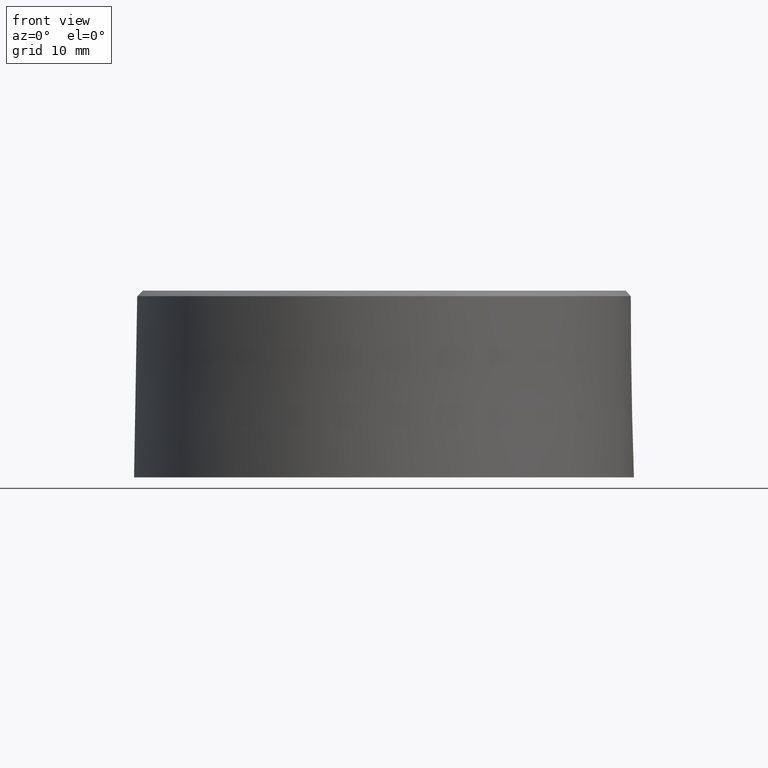
[diagram: clean part render]
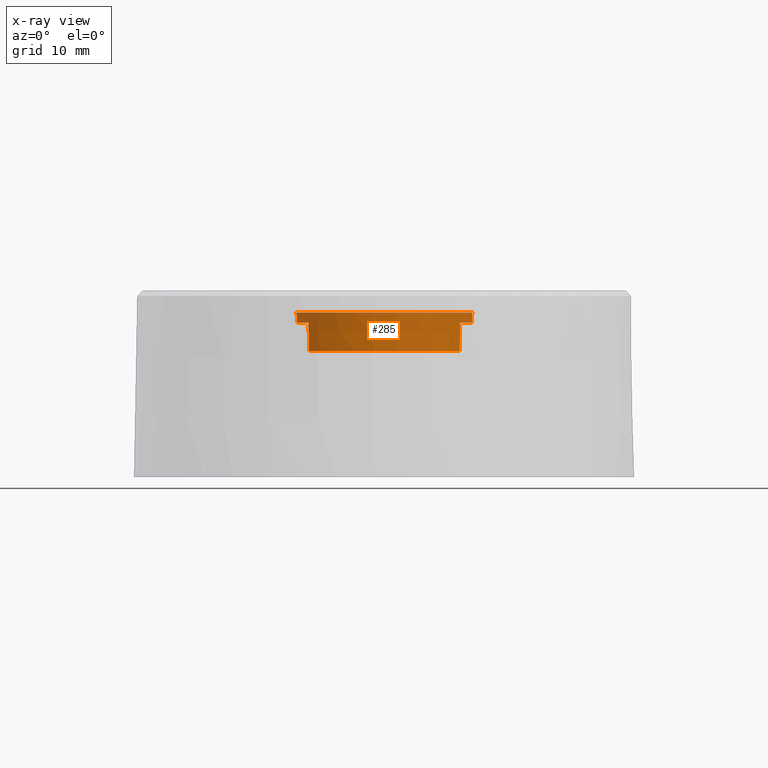
[diagram: x-ray — body ghosted, one internal face saturated and labeled with its STEP entity id]
A machine part, front view, then the same camera in x-ray: the body is ghosted and one INTERNAL B-rep face — a face not visible from any outside direction — is saturated and labeled: STEP entity #285.
In plain terms, the highlighted conical surface has half-angle 1 deg.
Its self-contained STEP definition (entity closure, byte-faithful):
#3 = ORIENTED_EDGE ( 'NONE', *, *, #387, .T. ) ;
#19 = DIRECTION ( 'NONE',  ( 0.000000000000000000, 0.000000000000000000, 1.000000000000000000 ) ) ;
#23 = CARTESIAN_POINT ( 'NONE',  ( -0.2710133180470740144, 0.1574803149606298913, 0.5037418801071139596 ) ) ;
#24 = DIRECTION ( 'NONE',  ( 1.000000000000000000, 0.000000000000000000, 0.000000000000000000 ) ) ;
#26 = VERTEX_POINT ( 'NONE', #192 ) ;
#28 = CONICAL_SURFACE ( 'NONE', #85, 0.3149606299212598381, 0.01745329251994153993 ) ;
#32 = CARTESIAN_POINT ( 'NONE',  ( 0.000000000000000000, 0.000000000000000000, 0.4527559055118110520 ) ) ;
#65 = CARTESIAN_POINT ( 'NONE',  ( 0.000000000000000000, 0.000000000000000000, 0.5905511811023621549 ) ) ;
#80 = FACE_BOUND ( 'NONE', #346, .T. ) ;
#85 = AXIS2_PLACEMENT_3D ( 'NONE', #248, #691, #618 ) ;
#88 = CARTESIAN_POINT ( 'NONE',  ( 0.000000000000000000, 0.000000000000000000, 0.5551181102362204856 ) ) ;
#99 = CARTESIAN_POINT ( 'NONE',  ( -0.2710133180470480907, -0.1574803149606298913, 0.5037418801058231033 ) ) ;
#102 =( BOUNDED_CURVE ( )  B_SPLINE_CURVE ( 2, ( #946, #99, #389 ),
 .UNSPECIFIED., .F., .T. ) 
 B_SPLINE_CURVE_WITH_KNOTS ( ( 3, 3 ),
 ( 0.000000000000000000, 0.2594788765233660421 ),
 .UNSPECIFIED. ) 
 CURVE ( )  GEOMETRIC_REPRESENTATION_ITEM ( )  RATIONAL_B_SPLINE_CURVE ( ( 1.000000000000000000, 1.000008586743750039, 1.000006307027889951 ) ) 
 REPRESENTATION_ITEM ( '' )  );
#109 = ORIENTED_EDGE ( 'NONE', *, *, #530, .T. ) ;
#123 = VERTEX_POINT ( 'NONE', #675 ) ;
#142 = CARTESIAN_POINT ( 'NONE',  ( -0.2720495056005799439, 0.1574803149606299191, 0.5551181102362204856 ) ) ;
#147 = ORIENTED_EDGE ( 'NONE', *, *, #488, .T. ) ;
#152 = CIRCLE ( 'NONE', #336, 0.3125554044390252417 ) ;
#159 = CARTESIAN_POINT ( 'NONE',  ( -0.2699830202882192998, 0.1574803149606299191, 0.4527559055118110520 ) ) ;
#172 = EDGE_CURVE ( 'NONE', #481, #481, #912, .T. ) ;
#188 = CARTESIAN_POINT ( 'NONE',  ( 0.2699830202882192998, 0.1574803149606299191, 0.4527559055118110520 ) ) ;
#192 = CARTESIAN_POINT ( 'NONE',  ( 0.2720495056005799439, 0.1574803149606299191, 0.5551181102362204856 ) ) ;
#198 = VERTEX_POINT ( 'NONE', #142 ) ;
#218 = DIRECTION ( 'NONE',  ( 0.000000000000000000, 0.000000000000000000, 1.000000000000000000 ) ) ;
#244 = DIRECTION ( 'NONE',  ( 0.000000000000000000, 0.000000000000000000, 1.000000000000000000 ) ) ;
#248 = CARTESIAN_POINT ( 'NONE',  ( 0.000000000000000000, 0.000000000000000000, 0.5905511811023621549 ) ) ;
#257 = EDGE_CURVE ( 'NONE', #936, #198, #373, .T. ) ;
#266 = CARTESIAN_POINT ( 'NONE',  ( 0.2720495056005799439, 0.1574803149606299191, 0.5551181102362204856 ) ) ;
#275 = DIRECTION ( 'NONE',  ( 1.000000000000000000, 0.000000000000000000, 0.000000000000000000 ) ) ;
#285 = ADVANCED_FACE ( 'NONE', ( #614, #80 ), #28, .T. ) ;
#327 = DIRECTION ( 'NONE',  ( 1.000000000000000000, 0.000000000000000000, 0.000000000000000000 ) ) ;
#328 = DIRECTION ( 'NONE',  ( 0.000000000000000000, 0.000000000000000000, 1.000000000000000000 ) ) ;
#336 = AXIS2_PLACEMENT_3D ( 'NONE', #619, #244, #542 ) ;
#346 = EDGE_LOOP ( 'NONE', ( #147, #921, #895, #494, #903, #109, #3, #375 ) ) ;
#351 = CARTESIAN_POINT ( 'NONE',  ( -0.2699830202882192998, -0.1574803149606299191, 0.4527559055118110520 ) ) ;
#363 = AXIS2_PLACEMENT_3D ( 'NONE', #713, #328, #24 ) ;
#369 = EDGE_CURVE ( 'NONE', #198, #460, #524, .T. ) ;
#373 =( BOUNDED_CURVE ( )  B_SPLINE_CURVE ( 2, ( #159, #23, #712 ),
 .UNSPECIFIED., .F., .F. ) 
 B_SPLINE_CURVE_WITH_KNOTS ( ( 3, 3 ),
 ( 0.1506047571753989789, 0.4100836336985340669 ),
 .UNSPECIFIED. ) 
 CURVE ( )  GEOMETRIC_REPRESENTATION_ITEM ( )  RATIONAL_B_SPLINE_CURVE ( ( 1.000006307008189932, 1.000008586716920167, 1.000000000000000000 ) ) 
 REPRESENTATION_ITEM ( '' )  );
#375 = ORIENTED_EDGE ( 'NONE', *, *, #804, .T. ) ;
#387 = EDGE_CURVE ( 'NONE', #123, #26, #654, .T. ) ;
#389 = CARTESIAN_POINT ( 'NONE',  ( -0.2699830202882192998, -0.1574803149606299191, 0.4527559055118110520 ) ) ;
#404 = VERTEX_POINT ( 'NONE', #636 ) ;
#416 = EDGE_CURVE ( 'NONE', #460, #621, #102, .T. ) ;
#460 = VERTEX_POINT ( 'NONE', #464 ) ;
#464 = CARTESIAN_POINT ( 'NONE',  ( -0.2720495056005799439, -0.1574803149606299191, 0.5551181102362204856 ) ) ;
#481 = VERTEX_POINT ( 'NONE', #490 ) ;
#488 = EDGE_CURVE ( 'NONE', #714, #936, #152, .T. ) ;
#490 = CARTESIAN_POINT ( 'NONE',  ( 0.3149606299212598381, 0.000000000000000000, 0.5905511811023621549 ) ) ;
#494 = ORIENTED_EDGE ( 'NONE', *, *, #416, .T. ) ;
#501 = CARTESIAN_POINT ( 'NONE',  ( 0.2710133180470740144, 0.1574803149606298913, 0.5037418801071139596 ) ) ;
#524 = CIRCLE ( 'NONE', #957, 0.3143421433686849897 ) ;
#530 = EDGE_CURVE ( 'NONE', #404, #123, #856, .T. ) ;
#542 = DIRECTION ( 'NONE',  ( 1.000000000000000000, 0.000000000000000000, 0.000000000000000000 ) ) ;
#609 = EDGE_CURVE ( 'NONE', #621, #404, #847, .T. ) ;
#614 = FACE_OUTER_BOUND ( 'NONE', #851, .T. ) ;
#618 = DIRECTION ( 'NONE',  ( 1.000000000000000000, 0.000000000000000000, 0.000000000000000000 ) ) ;
#619 = CARTESIAN_POINT ( 'NONE',  ( 0.000000000000000000, 0.000000000000000000, 0.4527559055118110520 ) ) ;
#621 = VERTEX_POINT ( 'NONE', #351 ) ;
#624 = CARTESIAN_POINT ( 'NONE',  ( 0.2710133180470338243, -0.1574803149606298913, 0.5037418801051141148 ) ) ;
#629 = CARTESIAN_POINT ( 'NONE',  ( 0.2720495056005794998, -0.1574803149606299191, 0.5551181102362204856 ) ) ;
#636 = CARTESIAN_POINT ( 'NONE',  ( 0.2699830202882192998, -0.1574803149606299191, 0.4527559055118110520 ) ) ;
#654 = CIRCLE ( 'NONE', #363, 0.3143421433686849897 ) ;
#661 =( BOUNDED_CURVE ( )  B_SPLINE_CURVE ( 2, ( #266, #501, #188 ),
 .UNSPECIFIED., .F., .T. ) 
 B_SPLINE_CURVE_WITH_KNOTS ( ( 3, 3 ),
 ( 0.000000000000000000, 0.2594788765231350047 ),
 .UNSPECIFIED. ) 
 CURVE ( )  GEOMETRIC_REPRESENTATION_ITEM ( )  RATIONAL_B_SPLINE_CURVE ( ( 1.000000000000000000, 1.000008586716920167, 1.000006307008189932 ) ) 
 REPRESENTATION_ITEM ( '' )  );
#671 = AXIS2_PLACEMENT_3D ( 'NONE', #65, #218, #688 ) ;
#675 = CARTESIAN_POINT ( 'NONE',  ( 0.2720495056005794998, -0.1574803149606299191, 0.5551181102362204856 ) ) ;
#688 = DIRECTION ( 'NONE',  ( 1.000000000000000000, 0.000000000000000000, 0.000000000000000000 ) ) ;
#691 = DIRECTION ( 'NONE',  ( 0.000000000000000000, 0.000000000000000000, 1.000000000000000000 ) ) ;
#712 = CARTESIAN_POINT ( 'NONE',  ( -0.2720495056005799439, 0.1574803149606299191, 0.5551181102362204856 ) ) ;
#713 = CARTESIAN_POINT ( 'NONE',  ( 0.000000000000000000, 0.000000000000000000, 0.5551181102362204856 ) ) ;
#714 = VERTEX_POINT ( 'NONE', #968 ) ;
#757 = ORIENTED_EDGE ( 'NONE', *, *, #172, .F. ) ;
#804 = EDGE_CURVE ( 'NONE', #26, #714, #661, .T. ) ;
#827 = CARTESIAN_POINT ( 'NONE',  ( -0.2699830202882192998, 0.1574803149606299191, 0.4527559055118110520 ) ) ;
#847 = CIRCLE ( 'NONE', #913, 0.3125554044390252417 ) ;
#851 = EDGE_LOOP ( 'NONE', ( #757 ) ) ;
#854 = CARTESIAN_POINT ( 'NONE',  ( 0.2699830202882192998, -0.1574803149606299191, 0.4527559055118110520 ) ) ;
#856 =( BOUNDED_CURVE ( )  B_SPLINE_CURVE ( 2, ( #854, #624, #629 ),
 .UNSPECIFIED., .F., .T. ) 
 B_SPLINE_CURVE_WITH_KNOTS ( ( 3, 3 ),
 ( 0.1506047571696639831, 0.4100836336985340114 ),
 .UNSPECIFIED. ) 
 CURVE ( )  GEOMETRIC_REPRESENTATION_ITEM ( )  RATIONAL_B_SPLINE_CURVE ( ( 1.000006307064829958, 1.000008586794050025, 1.000000000000000000 ) ) 
 REPRESENTATION_ITEM ( '' )  );
#895 = ORIENTED_EDGE ( 'NONE', *, *, #369, .T. ) ;
#903 = ORIENTED_EDGE ( 'NONE', *, *, #609, .T. ) ;
#912 = CIRCLE ( 'NONE', #671, 0.3149606299212598381 ) ;
#913 = AXIS2_PLACEMENT_3D ( 'NONE', #32, #950, #275 ) ;
#921 = ORIENTED_EDGE ( 'NONE', *, *, #257, .T. ) ;
#936 = VERTEX_POINT ( 'NONE', #827 ) ;
#946 = CARTESIAN_POINT ( 'NONE',  ( -0.2720495056005799439, -0.1574803149606299191, 0.5551181102362204856 ) ) ;
#950 = DIRECTION ( 'NONE',  ( 0.000000000000000000, 0.000000000000000000, 1.000000000000000000 ) ) ;
#957 = AXIS2_PLACEMENT_3D ( 'NONE', #88, #19, #327 ) ;
#968 = CARTESIAN_POINT ( 'NONE',  ( 0.2699830202882192998, 0.1574803149606299191, 0.4527559055118110520 ) ) ;